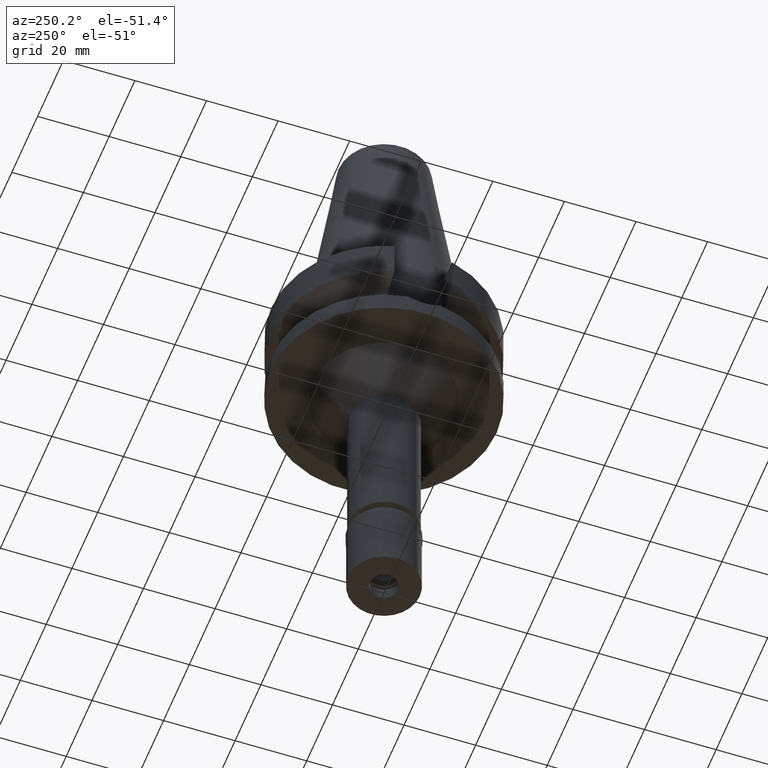
[diagram: clean part render]
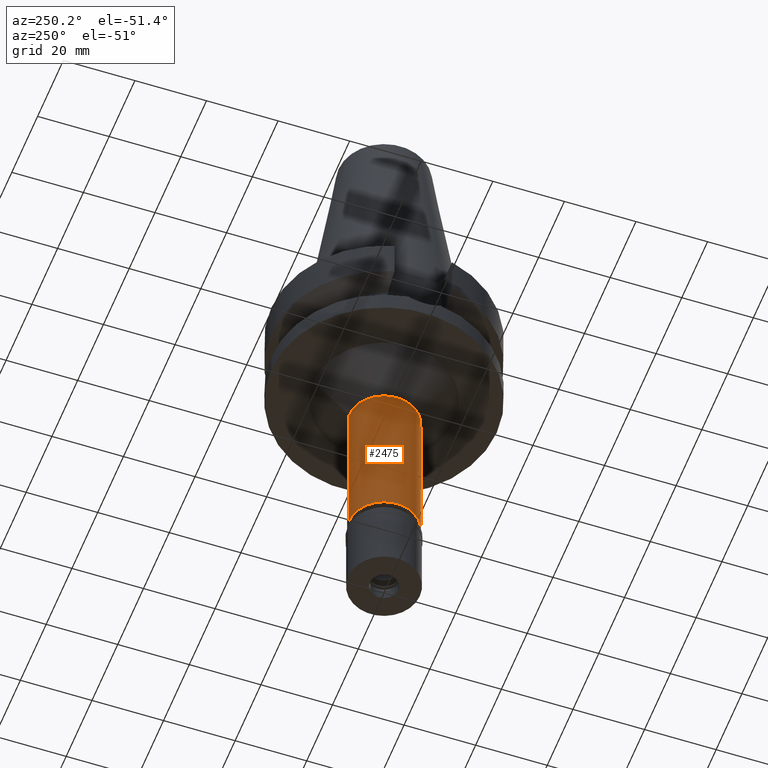
[diagram: same view with one face highlighted and labeled with its STEP entity id]
A machine part, auxiliary view. The second image highlights one B-rep face of the part: STEP entity #2475.
In plain terms, the highlighted cylindrical surface (partial cylindrical patch) has radius 9.75 mm, axis along (0, 0, -1).
Its self-contained STEP definition (entity closure, byte-faithful):
#39 = ORIENTED_EDGE ( 'NONE', *, *, #2275, .T. ) ;
#110 = EDGE_CURVE ( 'NONE', #1116, #578, #1289, .T. ) ;
#229 = AXIS2_PLACEMENT_3D ( 'NONE', #3083, #2855, #707 ) ;
#333 = ORIENTED_EDGE ( 'NONE', *, *, #110, .T. ) ;
#378 = AXIS2_PLACEMENT_3D ( 'NONE', #1585, #1126, #1143 ) ;
#411 = DIRECTION ( 'NONE',  ( 0.0000000000000000000, 0.0000000000000000000, 1.000000000000000000 ) ) ;
#578 = VERTEX_POINT ( 'NONE', #2980 ) ;
#613 = EDGE_LOOP ( 'NONE', ( #333, #3022, #2782, #39 ) ) ;
#620 = CARTESIAN_POINT ( 'NONE',  ( 0.0000000000000000000, 9.750000000000000000, -37.00000000000000000 ) ) ;
#687 = CIRCLE ( 'NONE', #378, 9.750000000000000000 ) ;
#707 = DIRECTION ( 'NONE',  ( 0.0000000000000000000, -1.000000000000000000, 0.0000000000000000000 ) ) ;
#1002 = VERTEX_POINT ( 'NONE', #620 ) ;
#1092 = AXIS2_PLACEMENT_3D ( 'NONE', #1404, #411, #1122 ) ;
#1116 = VERTEX_POINT ( 'NONE', #2869 ) ;
#1122 = DIRECTION ( 'NONE',  ( 0.0000000000000000000, 1.000000000000000000, 0.0000000000000000000 ) ) ;
#1126 = DIRECTION ( 'NONE',  ( 0.0000000000000000000, 0.0000000000000000000, -1.000000000000000000 ) ) ;
#1143 = DIRECTION ( 'NONE',  ( 0.0000000000000000000, -1.000000000000000000, 0.0000000000000000000 ) ) ;
#1159 = CARTESIAN_POINT ( 'NONE',  ( 0.0000000000000000000, 9.750000000000000000, -37.00000000000000000 ) ) ;
#1289 = CIRCLE ( 'NONE', #1092, 9.750000000000000000 ) ;
#1386 = LINE ( 'NONE', #1159, #2160 ) ;
#1404 = CARTESIAN_POINT ( 'NONE',  ( 0.0000000000000000000, 0.0000000000000000000, -81.60000000000000853 ) ) ;
#1585 = CARTESIAN_POINT ( 'NONE',  ( 0.0000000000000000000, 0.0000000000000000000, -37.00000000000000000 ) ) ;
#1587 = DIRECTION ( 'NONE',  ( 0.0000000000000000000, 0.0000000000000000000, -1.000000000000000000 ) ) ;
#1683 = CYLINDRICAL_SURFACE ( 'NONE', #229, 9.750000000000000000 ) ;
#1813 = EDGE_CURVE ( 'NONE', #2297, #578, #2341, .T. ) ;
#1904 = FACE_OUTER_BOUND ( 'NONE', #613, .T. ) ;
#2045 = EDGE_CURVE ( 'NONE', #2297, #1002, #687, .T. ) ;
#2075 = CARTESIAN_POINT ( 'NONE',  ( 0.0000000000000000000, -9.750000000000000000, -37.00000000000000000 ) ) ;
#2090 = DIRECTION ( 'NONE',  ( 0.0000000000000000000, 0.0000000000000000000, -1.000000000000000000 ) ) ;
#2160 = VECTOR ( 'NONE', #2090, 1000.000000000000000 ) ;
#2200 = VECTOR ( 'NONE', #1587, 1000.000000000000000 ) ;
#2275 = EDGE_CURVE ( 'NONE', #1002, #1116, #1386, .T. ) ;
#2297 = VERTEX_POINT ( 'NONE', #2075 ) ;
#2341 = LINE ( 'NONE', #2795, #2200 ) ;
#2475 = ADVANCED_FACE ( 'NONE', ( #1904 ), #1683, .T. ) ;
#2782 = ORIENTED_EDGE ( 'NONE', *, *, #2045, .T. ) ;
#2795 = CARTESIAN_POINT ( 'NONE',  ( 0.0000000000000000000, -9.750000000000000000, -37.00000000000000000 ) ) ;
#2855 = DIRECTION ( 'NONE',  ( 0.0000000000000000000, 0.0000000000000000000, -1.000000000000000000 ) ) ;
#2869 = CARTESIAN_POINT ( 'NONE',  ( 0.0000000000000000000, 9.750000000000000000, -81.60000000000000853 ) ) ;
#2980 = CARTESIAN_POINT ( 'NONE',  ( 0.0000000000000000000, -9.750000000000000000, -81.60000000000000853 ) ) ;
#3022 = ORIENTED_EDGE ( 'NONE', *, *, #1813, .F. ) ;
#3083 = CARTESIAN_POINT ( 'NONE',  ( 0.0000000000000000000, 0.0000000000000000000, 0.0000000000000000000 ) ) ;